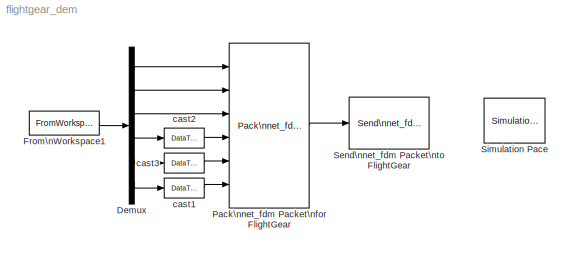
MODEL flightgear_dem
KIND model
BLOCK [Demux] Demux
  DisplayOption = bar
  Outputs = 6
  Ports = [1, 6]
  SID = 100
BLOCK [FromWorkspace] From\nWorkspace1
  SID = 96
  SampleTime = 0
  VariableName = output_data
  ZeroCross = on
BLOCK [Reference] Pack\nnet_fdm Packet\nfor FlightGear  REF=aerolibfltsims/Pack\nnet_fdm Packet\nfor FlightGear
  AttributesFormatString = Version Selected: %<FlightGearVersion>
  FlightGearVersion = v2.0
  Ports = [6, 1]
  SID = 92
  SampleTime = 1/30
  ShowControlSurfacePositionInputs = off
  ShowEngineFuelInputs = off
  ShowEnvironmentInputs = off
  ShowLandingGearInputs = off
  ShowPositionAttitudeInputs = on
  ShowVelocityAccelerationInputs = off
  SourceBlock = aerolibfltsims/Pack\nnet_fdm Packet\nfor FlightGear
  SourceType = FlightGearPackNetFdm
BLOCK [Reference] Send\nnet_fdm Packet\nto FlightGear  REF=aerolibfltsims/Send\nnet_fdm Packet\nto FlightGear
  DestinationIpAddress = 127.0.0.1
  DestinationPort = 5502
  LocalIpPort = -1
  Ports = [1]
  SID = 93
  SampleTime = 1/30
  SourceBlock = aerolibfltsims/Send\nnet_fdm Packet\nto FlightGear
  SourceType = FlightGearSendNetFdm
  varLen = off
BLOCK [Reference] Simulation Pace  REF=aerolibanimutils/Simulation Pace
  AttributesFormatString = %<SimulationPace> sec/sec
  OutputPaceError = off
  Ports = []
  SID = 95
  SampleTime = 0.001
  SimulationPace = 1
  SleepMode = MATLAB Thread
  SourceBlock = aerolibanimutils/Simulation Pace
  SourceType = Simulation Pace
BLOCK [DataTypeConversion] cast1
  OutDataTypeStr = single
  RndMeth = Floor
  SID = 98
BLOCK [DataTypeConversion] cast2
  OutDataTypeStr = single
  RndMeth = Floor
  SID = 94
BLOCK [DataTypeConversion] cast3
  OutDataTypeStr = single
  RndMeth = Floor
  SID = 99
LINE Demux:1 -> Pack\nnet_fdm Packet\nfor FlightGear:1
LINE Demux:2 -> Pack\nnet_fdm Packet\nfor FlightGear:2
LINE Demux:3 -> Pack\nnet_fdm Packet\nfor FlightGear:3
LINE Demux:4 -> cast2:1
LINE Demux:5 -> cast3:1
LINE Demux:6 -> cast1:1
LINE From\nWorkspace1:1 -> Demux:1
LINE Pack\nnet_fdm Packet\nfor FlightGear:1 -> Send\nnet_fdm Packet\nto FlightGear:1
LINE cast1:1 -> Pack\nnet_fdm Packet\nfor FlightGear:6
LINE cast2:1 -> Pack\nnet_fdm Packet\nfor FlightGear:4
LINE cast3:1 -> Pack\nnet_fdm Packet\nfor FlightGear:5
